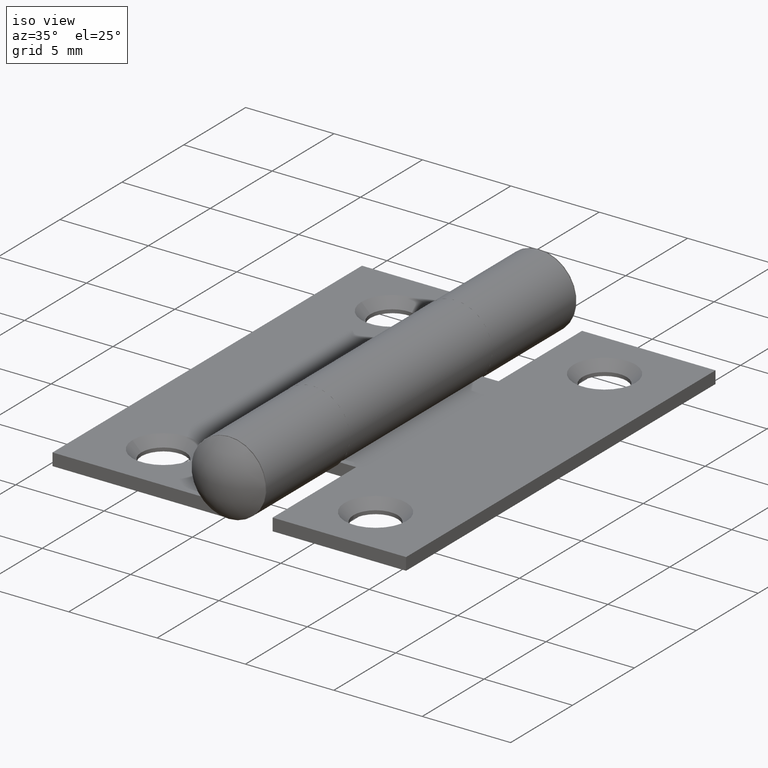
[diagram: clean part render]
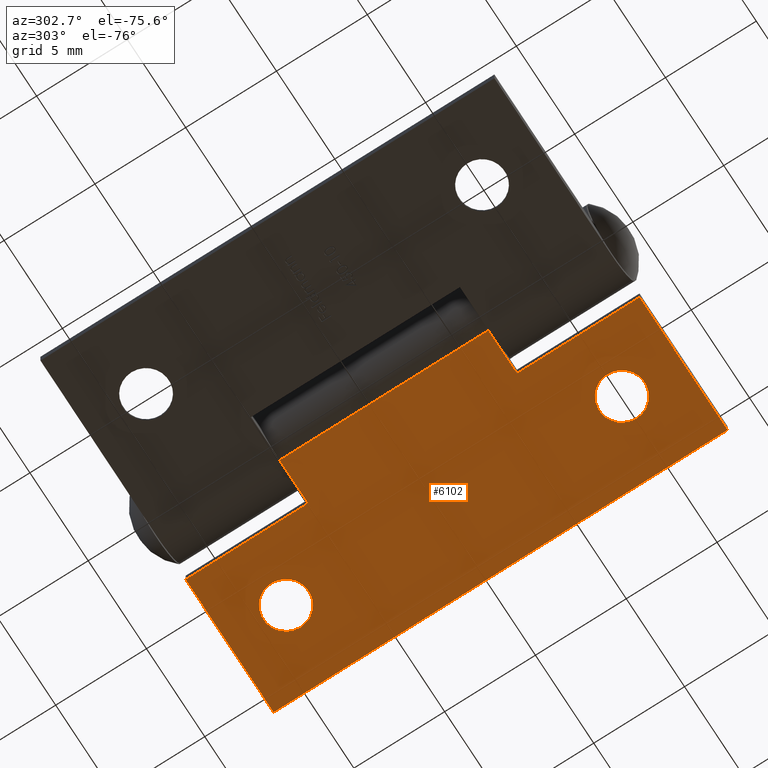
[diagram: tour spotlight — one face highlighted and labeled with its STEP entity id]
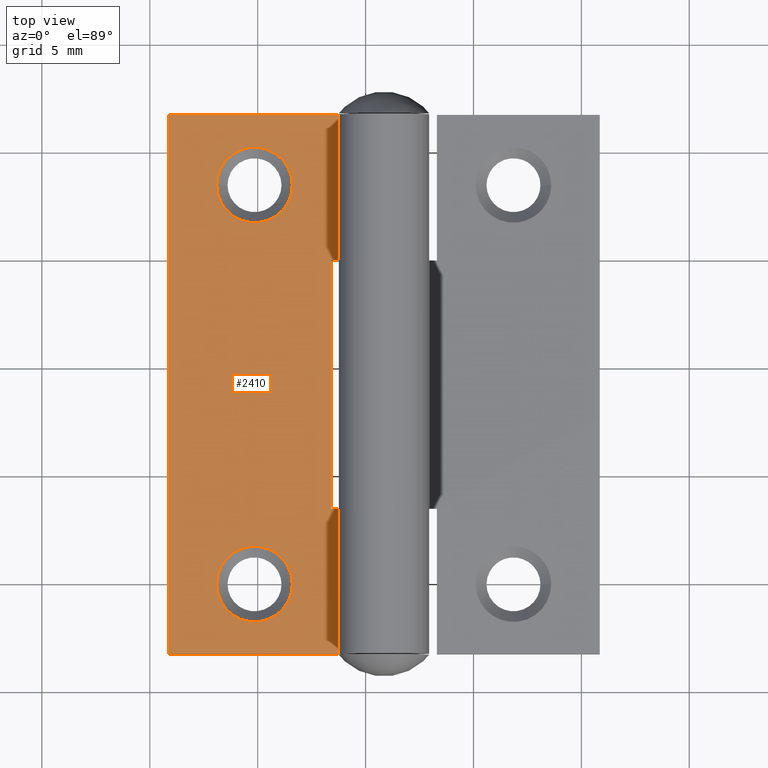
[diagram: tour spotlight — one face highlighted and labeled with its STEP entity id]
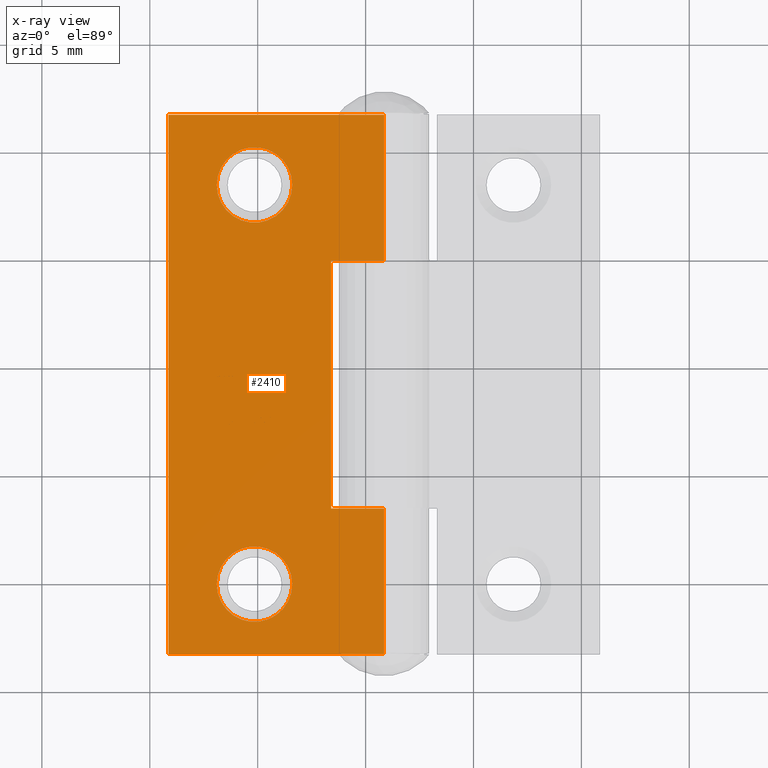
[diagram: x-ray of the same camera — body ghosted, this tour face saturated]
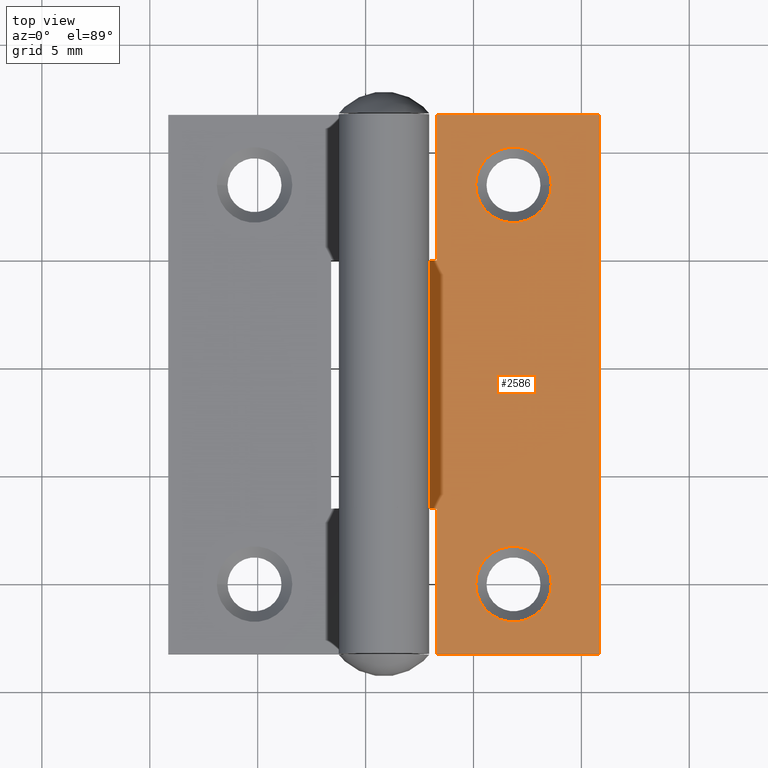
[diagram: tour spotlight — one face highlighted and labeled with its STEP entity id]
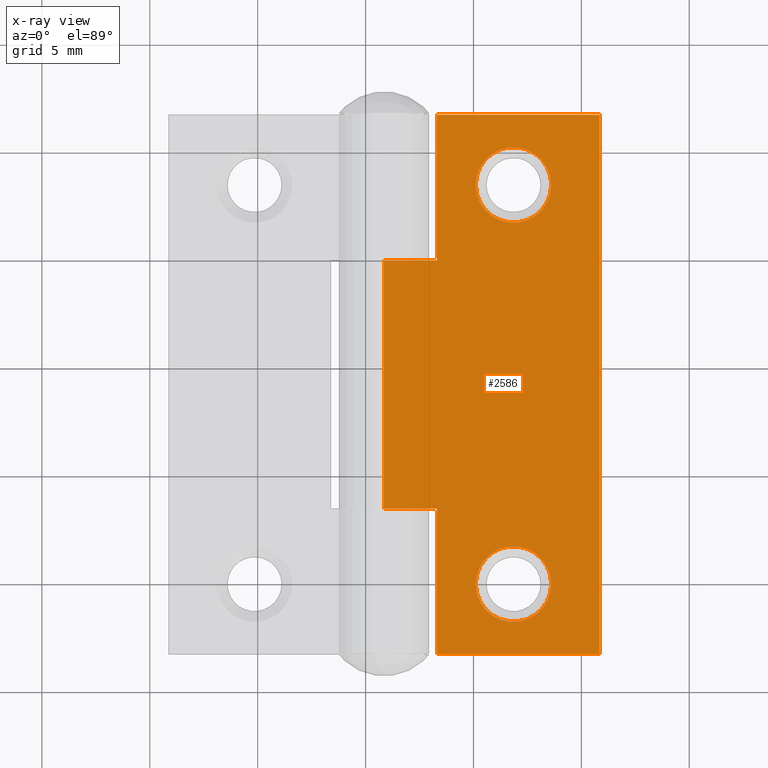
[diagram: x-ray of the same camera — body ghosted, this tour face saturated]
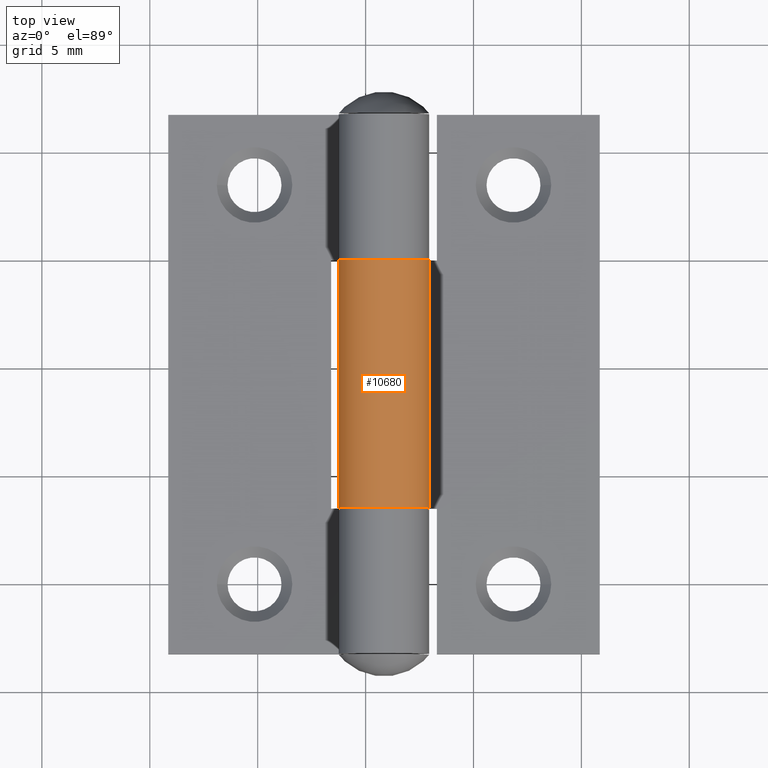
[diagram: tour spotlight — one face highlighted and labeled with its STEP entity id]
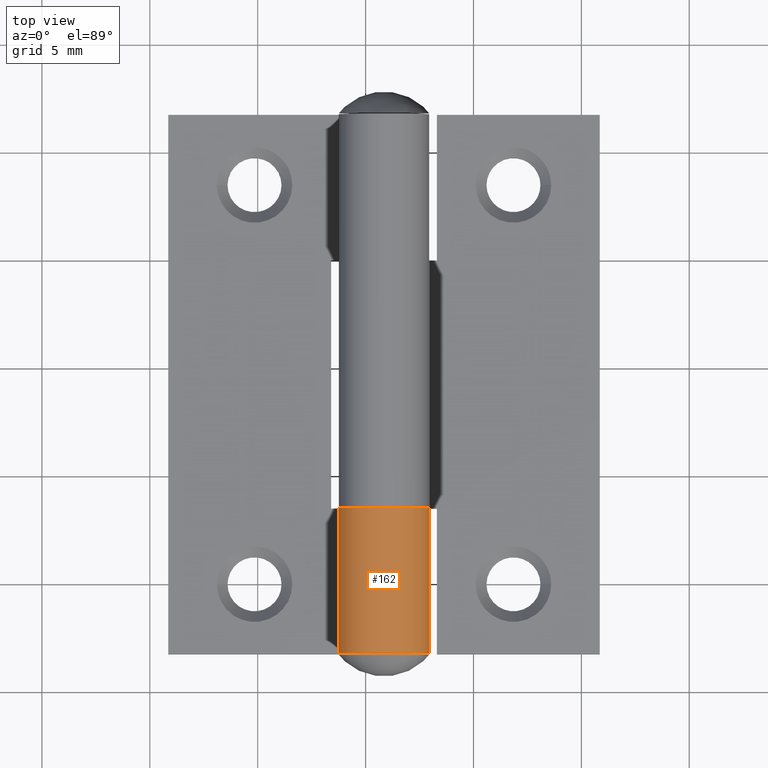
[diagram: tour spotlight — one face highlighted and labeled with its STEP entity id]
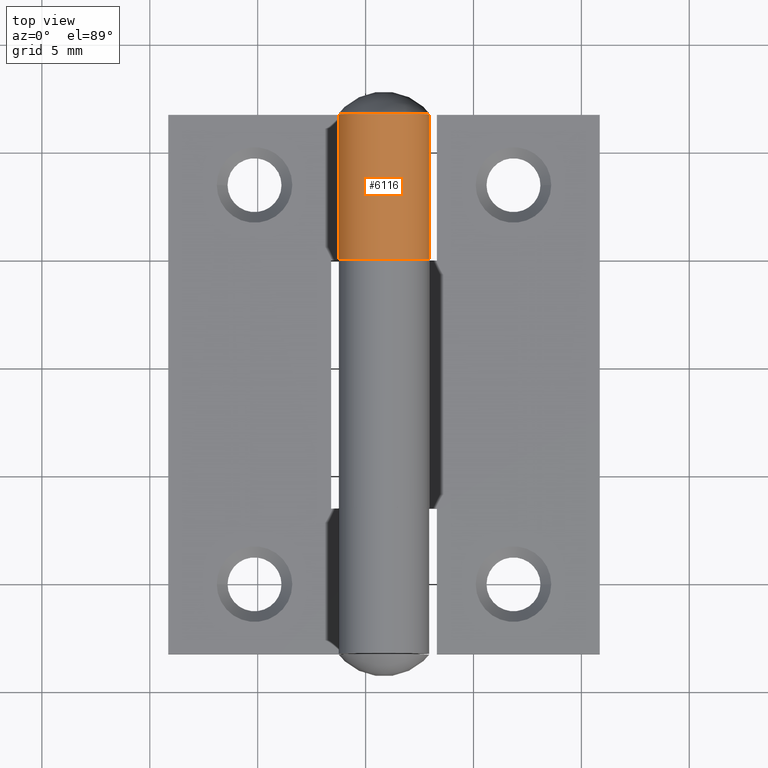
[diagram: tour spotlight — one face highlighted and labeled with its STEP entity id]
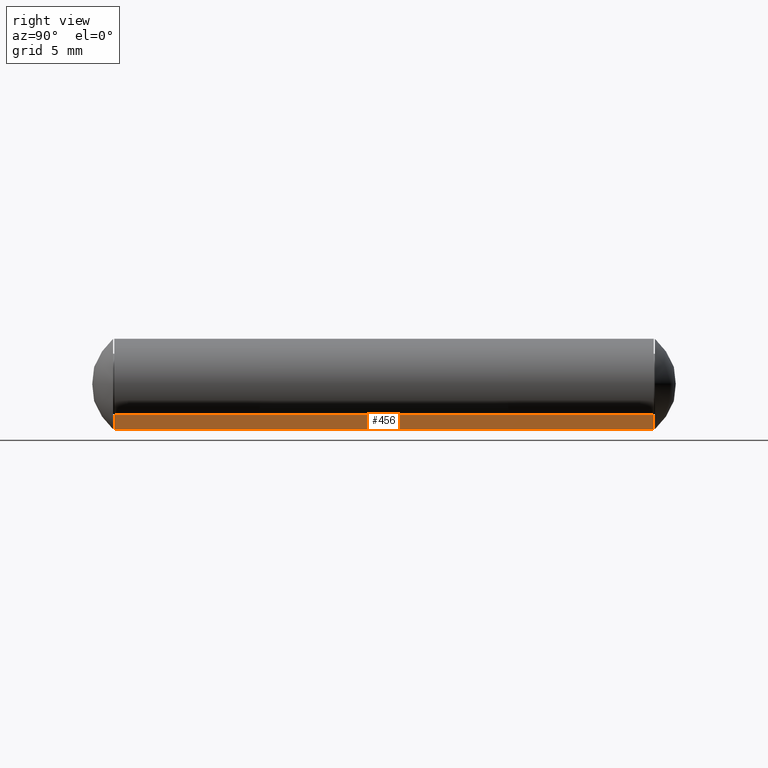
[diagram: tour spotlight — one face highlighted and labeled with its STEP entity id]
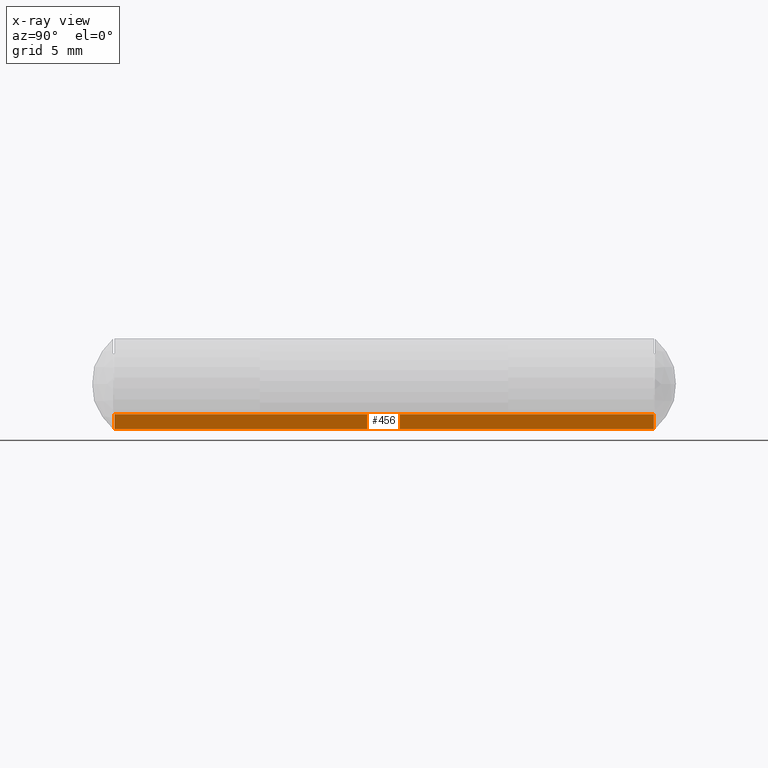
[diagram: x-ray of the same camera — body ghosted, this tour face saturated]
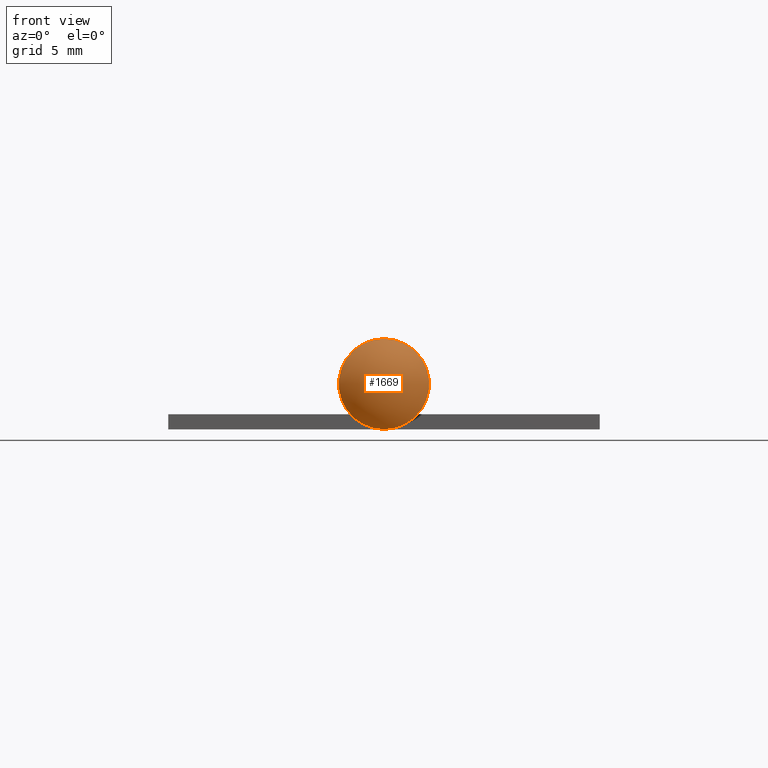
[diagram: tour spotlight — one face highlighted and labeled with its STEP entity id]
A machine part: a face-by-face anatomy tour. The part has 216 B-rep faces; the first image is the clean iso view, then the 8 largest visible faces are spotlighted one at a time (largest first), each with its STEP entity span.

Face 1 — auxiliary view, entity #6102. In plain terms, the highlighted planar face has unit normal (0, 0, 1).
Definition (entity closure, byte-faithful):
#190 = DIRECTION ( 'NONE',  ( 1.000000000000000000, 0.000000000000000000, -1.301042606982605321E-16 ) ) ;
#264 = VERTEX_POINT ( 'NONE', #998 ) ;
#420 = EDGE_CURVE ( 'NONE', #10159, #6763, #4434, .T. ) ;
#527 = CARTESIAN_POINT ( 'NONE',  ( -2.099999999999999645, -12.50000000000000000, 0.000000000000000000 ) ) ;
#794 = VERTEX_POINT ( 'NONE', #11299 ) ;
#811 = CARTESIAN_POINT ( 'NONE',  ( -6.849999999999996092, -9.250000000000001776, 0.000000000000000000 ) ) ;
#998 = CARTESIAN_POINT ( 'NONE',  ( -4.549999999999999822, -12.50000000000000000, 5.919743861770854210E-16 ) ) ;
#1115 = AXIS2_PLACEMENT_3D ( 'NONE', #5033, #7751, #10340 ) ;
#1246 = CARTESIAN_POINT ( 'NONE',  ( 4.549999999999998934, -5.750000000000000000, -5.919743861770853224E-16 ) ) ;
#1316 = EDGE_CURVE ( 'NONE', #9497, #794, #11236, .T. ) ;
#1322 = VERTEX_POINT ( 'NONE', #8472 ) ;
#1478 = CARTESIAN_POINT ( 'NONE',  ( -12.09999999999999964, 12.50000000000000000, 1.301042606982605321E-15 ) ) ;
#1580 = ORIENTED_EDGE ( 'NONE', *, *, #5054, .F. ) ;
#1609 = EDGE_CURVE ( 'NONE', #9497, #1322, #9044, .T. ) ;
#1701 = DIRECTION ( 'NONE',  ( 0.000000000000000000, 0.000000000000000000, 1.000000000000000000 ) ) ;
#1793 = VECTOR ( 'NONE', #9829, 1000.000000000000000 ) ;
#1846 = ORIENTED_EDGE ( 'NONE', *, *, #1316, .T. ) ;
#1869 = VERTEX_POINT ( 'NONE', #8619 ) ;
#2190 = EDGE_CURVE ( 'NONE', #3957, #3957, #3991, .T. ) ;
#2236 = EDGE_LOOP ( 'NONE', ( #8016, #6761, #5276, #1846, #10421, #1580, #2939, #10902 ) ) ;
#2421 = LINE ( 'NONE', #10615, #3836 ) ;
#2424 = LINE ( 'NONE', #1478, #4094 ) ;
#2603 = VECTOR ( 'NONE', #3837, 1000.000000000000000 ) ;
#2668 = CARTESIAN_POINT ( 'NONE',  ( -2.099999999999999645, 5.750000000000000000, 2.732189474663468709E-16 ) ) ;
#2755 = PLANE ( 'NONE',  #7199 ) ;
#2862 = CARTESIAN_POINT ( 'NONE',  ( -2.099999999999999645, 12.50000000000000000, 0.000000000000000000 ) ) ;
#2939 = ORIENTED_EDGE ( 'NONE', *, *, #6364, .T. ) ;
#3227 = FACE_OUTER_BOUND ( 'NONE', #2236, .T. ) ;
#3716 = CARTESIAN_POINT ( 'NONE',  ( 4.549999999999998934, 5.750000000000000000, -5.919743861770853224E-16 ) ) ;
#3836 = VECTOR ( 'NONE', #7904, 1000.000000000000000 ) ;
#3837 = DIRECTION ( 'NONE',  ( -0.000000000000000000, -1.000000000000000000, -0.000000000000000000 ) ) ;
#3957 = VERTEX_POINT ( 'NONE', #6954 ) ;
#3991 = CIRCLE ( 'NONE', #1115, 1.250000000000000222 ) ;
#4014 = EDGE_CURVE ( 'NONE', #1322, #10159, #2421, .T. ) ;
#4094 = VECTOR ( 'NONE', #8738, 1000.000000000000000 ) ;
#4274 = CARTESIAN_POINT ( 'NONE',  ( -12.09999999999999964, 12.50000000000000000, 1.301042606982605321E-15 ) ) ;
#4434 = LINE ( 'NONE', #2862, #4951 ) ;
#4443 = ORIENTED_EDGE ( 'NONE', *, *, #2190, .T. ) ;
#4636 = VECTOR ( 'NONE', #7145, 1000.000000000000000 ) ;
#4712 = DIRECTION ( 'NONE',  ( -1.000000000000000000, 0.000000000000000000, 1.301042606982605321E-16 ) ) ;
#4951 = VECTOR ( 'NONE', #5752, 1000.000000000000000 ) ;
#5033 = CARTESIAN_POINT ( 'NONE',  ( -8.099999999999997868, 9.249999999999998224, 0.000000000000000000 ) ) ;
#5054 = EDGE_CURVE ( 'NONE', #264, #5557, #7757, .T. ) ;
#5276 = ORIENTED_EDGE ( 'NONE', *, *, #1609, .F. ) ;
#5306 = DIRECTION ( 'NONE',  ( 1.301042606982605321E-16, -0.000000000000000000, 1.000000000000000000 ) ) ;
#5380 = CARTESIAN_POINT ( 'NONE',  ( -2.099999999999999645, 12.50000000000000000, 0.000000000000000000 ) ) ;
#5451 = ORIENTED_EDGE ( 'NONE', *, *, #9941, .T. ) ;
#5557 = VERTEX_POINT ( 'NONE', #5787 ) ;
#5578 = CARTESIAN_POINT ( 'NONE',  ( -2.099999999999999645, 12.50000000000000000, 0.000000000000000000 ) ) ;
#5752 = DIRECTION ( 'NONE',  ( -1.000000000000000000, 0.000000000000000000, 1.301042606982605321E-16 ) ) ;
#5787 = CARTESIAN_POINT ( 'NONE',  ( -4.549999999999999822, -5.750000000000000000, 5.919743861770854210E-16 ) ) ;
#5977 = FACE_BOUND ( 'NONE', #6230, .T. ) ;
#6102 = ADVANCED_FACE ( 'NONE', ( #7878, #5977, #3227 ), #2755, .F. ) ;
#6230 = EDGE_LOOP ( 'NONE', ( #4443 ) ) ;
#6364 = EDGE_CURVE ( 'NONE', #264, #1869, #6543, .T. ) ;
#6543 = LINE ( 'NONE', #527, #9236 ) ;
#6564 = CIRCLE ( 'NONE', #10126, 1.250000000000000222 ) ;
#6761 = ORIENTED_EDGE ( 'NONE', *, *, #4014, .F. ) ;
#6763 = VERTEX_POINT ( 'NONE', #4274 ) ;
#6954 = CARTESIAN_POINT ( 'NONE',  ( -6.849999999999997868, 9.249999999999998224, 0.000000000000000000 ) ) ;
#7038 = EDGE_CURVE ( 'NONE', #5557, #794, #10744, .T. ) ;
#7145 = DIRECTION ( 'NONE',  ( -0.000000000000000000, 1.000000000000000000, -0.000000000000000000 ) ) ;
#7199 = AXIS2_PLACEMENT_3D ( 'NONE', #5380, #5306, #190 ) ;
#7236 = DIRECTION ( 'NONE',  ( 1.000000000000000000, -0.000000000000000000, -1.301042606982605074E-16 ) ) ;
#7332 = VECTOR ( 'NONE', #7236, 1000.000000000000000 ) ;
#7349 = VERTEX_POINT ( 'NONE', #811 ) ;
#7751 = DIRECTION ( 'NONE',  ( 0.000000000000000000, 0.000000000000000000, 1.000000000000000000 ) ) ;
#7757 = LINE ( 'NONE', #8823, #4636 ) ;
#7878 = FACE_BOUND ( 'NONE', #11325, .T. ) ;
#7904 = DIRECTION ( 'NONE',  ( -0.000000000000000000, 1.000000000000000000, -0.000000000000000000 ) ) ;
#8016 = ORIENTED_EDGE ( 'NONE', *, *, #420, .F. ) ;
#8472 = CARTESIAN_POINT ( 'NONE',  ( -4.549999999999999822, 5.750000000000000000, 5.919743861770854210E-16 ) ) ;
#8619 = CARTESIAN_POINT ( 'NONE',  ( -12.09999999999999964, -12.50000000000000000, 1.301042606982605321E-15 ) ) ;
#8695 = DIRECTION ( 'NONE',  ( 1.000000000000000000, 0.000000000000000000, 0.000000000000000000 ) ) ;
#8738 = DIRECTION ( 'NONE',  ( -0.000000000000000000, -1.000000000000000000, -0.000000000000000000 ) ) ;
#8823 = CARTESIAN_POINT ( 'NONE',  ( -4.549999999999999822, -5.750000000000000000, 5.919743861770854210E-16 ) ) ;
#9044 = LINE ( 'NONE', #3716, #1793 ) ;
#9236 = VECTOR ( 'NONE', #4712, 1000.000000000000000 ) ;
#9497 = VERTEX_POINT ( 'NONE', #2668 ) ;
#9756 = CARTESIAN_POINT ( 'NONE',  ( -4.549999999999999822, 12.50000000000000000, 3.187554387107384022E-16 ) ) ;
#9829 = DIRECTION ( 'NONE',  ( -1.000000000000000000, 0.000000000000000000, 1.301042606982605074E-16 ) ) ;
#9876 = EDGE_CURVE ( 'NONE', #6763, #1869, #2424, .T. ) ;
#9941 = EDGE_CURVE ( 'NONE', #7349, #7349, #6564, .T. ) ;
#10126 = AXIS2_PLACEMENT_3D ( 'NONE', #10488, #1701, #8695 ) ;
#10159 = VERTEX_POINT ( 'NONE', #9756 ) ;
#10340 = DIRECTION ( 'NONE',  ( 1.000000000000000000, 0.000000000000000000, 0.000000000000000000 ) ) ;
#10421 = ORIENTED_EDGE ( 'NONE', *, *, #7038, .F. ) ;
#10488 = CARTESIAN_POINT ( 'NONE',  ( -8.099999999999996092, -9.250000000000001776, 0.000000000000000000 ) ) ;
#10615 = CARTESIAN_POINT ( 'NONE',  ( -4.549999999999999822, 12.50000000000000000, 5.919743861770854210E-16 ) ) ;
#10744 = LINE ( 'NONE', #1246, #7332 ) ;
#10902 = ORIENTED_EDGE ( 'NONE', *, *, #9876, .F. ) ;
#11236 = LINE ( 'NONE', #5578, #2603 ) ;
#11299 = CARTESIAN_POINT ( 'NONE',  ( -2.099999999999999645, -5.750000000000000000, 2.732189474663468709E-16 ) ) ;
#11325 = EDGE_LOOP ( 'NONE', ( #5451 ) ) ;

Face 2 — top view, entity #2410. An x-ray twin of the same camera follows (body ghosted, this face saturated) — the face is partly hidden behind the body. In plain terms, the highlighted planar face has unit normal (-0, 0, -1).
Definition (entity closure, byte-faithful):
#291 = VECTOR ( 'NONE', #10193, 1000.000000000000000 ) ;
#372 = EDGE_LOOP ( 'NONE', ( #1823 ) ) ;
#528 = CARTESIAN_POINT ( 'NONE',  ( -8.099999999999996092, -9.250000000000001776, 0.7000000000000008438 ) ) ;
#666 = VECTOR ( 'NONE', #7928, 1000.000000000000000 ) ;
#753 = EDGE_CURVE ( 'NONE', #2101, #7299, #3828, .T. ) ;
#768 = CARTESIAN_POINT ( 'NONE',  ( -2.099999999999999645, 12.50000000000000000, 0.7000000000000000666 ) ) ;
#842 = CARTESIAN_POINT ( 'NONE',  ( -4.549999999999999822, 12.50000000000000000, 0.7000000000000003997 ) ) ;
#977 = CIRCLE ( 'NONE', #5580, 1.749999999999994671 ) ;
#978 = CARTESIAN_POINT ( 'NONE',  ( -8.099999999999997868, 9.249999999999998224, 0.7000000000000008438 ) ) ;
#1422 = EDGE_LOOP ( 'NONE', ( #3630, #5245, #8393, #1714, #2959, #8916, #8640, #4361 ) ) ;
#1635 = LINE ( 'NONE', #3494, #11080 ) ;
#1714 = ORIENTED_EDGE ( 'NONE', *, *, #5777, .T. ) ;
#1727 = EDGE_CURVE ( 'NONE', #10633, #10633, #977, .T. ) ;
#1823 = ORIENTED_EDGE ( 'NONE', *, *, #10545, .T. ) ;
#1920 = FACE_OUTER_BOUND ( 'NONE', #1422, .T. ) ;
#2101 = VERTEX_POINT ( 'NONE', #6629 ) ;
#2195 = FACE_BOUND ( 'NONE', #372, .T. ) ;
#2354 = DIRECTION ( 'NONE',  ( 1.000000000000000000, -0.000000000000000000, -1.192622389734055124E-16 ) ) ;
#2379 = EDGE_CURVE ( 'NONE', #4373, #6278, #10113, .T. ) ;
#2410 = ADVANCED_FACE ( 'NONE', ( #4531, #2195, #1920 ), #6842, .F. ) ;
#2486 = DIRECTION ( 'NONE',  ( -0.000000000000000000, -1.000000000000000000, -0.000000000000000000 ) ) ;
#2493 = DIRECTION ( 'NONE',  ( 0.000000000000000000, 1.000000000000000000, 0.000000000000000000 ) ) ;
#2695 = VERTEX_POINT ( 'NONE', #9478 ) ;
#2959 = ORIENTED_EDGE ( 'NONE', *, *, #8682, .F. ) ;
#3092 = VERTEX_POINT ( 'NONE', #3462 ) ;
#3271 = CARTESIAN_POINT ( 'NONE',  ( -9.849999999999990763, -9.250000000000001776, 0.7000000000000010658 ) ) ;
#3401 = VECTOR ( 'NONE', #9924, 1000.000000000000000 ) ;
#3462 = CARTESIAN_POINT ( 'NONE',  ( -12.09999999999999787, -12.50000000000000000, 0.7000000000000012879 ) ) ;
#3494 = CARTESIAN_POINT ( 'NONE',  ( -2.099999999999999645, 12.50000000000000000, 0.7000000000000000666 ) ) ;
#3596 = AXIS2_PLACEMENT_3D ( 'NONE', #768, #11199, #5094 ) ;
#3630 = ORIENTED_EDGE ( 'NONE', *, *, #753, .F. ) ;
#3828 = LINE ( 'NONE', #9344, #291 ) ;
#4263 = EDGE_CURVE ( 'NONE', #3092, #7299, #7094, .T. ) ;
#4361 = ORIENTED_EDGE ( 'NONE', *, *, #4263, .T. ) ;
#4373 = VERTEX_POINT ( 'NONE', #5766 ) ;
#4531 = FACE_BOUND ( 'NONE', #10341, .T. ) ;
#4839 = CARTESIAN_POINT ( 'NONE',  ( -2.099999999999999645, 12.50000000000000000, 0.7000000000000000666 ) ) ;
#5027 = LINE ( 'NONE', #7944, #3401 ) ;
#5037 = LINE ( 'NONE', #4839, #6020 ) ;
#5094 = DIRECTION ( 'NONE',  ( -1.000000000000000000, 0.000000000000000000, 1.192622389734055124E-16 ) ) ;
#5245 = ORIENTED_EDGE ( 'NONE', *, *, #9484, .T. ) ;
#5580 = AXIS2_PLACEMENT_3D ( 'NONE', #528, #6658, #10115 ) ;
#5721 = VECTOR ( 'NONE', #2354, 1000.000000000000000 ) ;
#5766 = CARTESIAN_POINT ( 'NONE',  ( -4.549999999999999822, -5.750000000000000000, 0.7000000000000000666 ) ) ;
#5777 = EDGE_CURVE ( 'NONE', #6278, #8414, #6270, .T. ) ;
#6020 = VECTOR ( 'NONE', #6639, 1000.000000000000000 ) ;
#6188 = CARTESIAN_POINT ( 'NONE',  ( -12.09999999999999787, 12.50000000000000000, 0.7000000000000012879 ) ) ;
#6221 = ORIENTED_EDGE ( 'NONE', *, *, #1727, .T. ) ;
#6270 = LINE ( 'NONE', #11281, #5721 ) ;
#6278 = VERTEX_POINT ( 'NONE', #8071 ) ;
#6435 = VECTOR ( 'NONE', #8885, 1000.000000000000000 ) ;
#6531 = DIRECTION ( 'NONE',  ( -1.000000000000000000, 0.000000000000000000, 1.239088197126294515E-16 ) ) ;
#6629 = CARTESIAN_POINT ( 'NONE',  ( -2.100000000000000089, -5.750000000000001776, 0.7000000000000000666 ) ) ;
#6639 = DIRECTION ( 'NONE',  ( 1.000000000000000000, -0.000000000000000000, -1.192622389734055124E-16 ) ) ;
#6658 = DIRECTION ( 'NONE',  ( -1.192622389734055124E-16, 0.000000000000000000, -1.000000000000000000 ) ) ;
#6677 = CARTESIAN_POINT ( 'NONE',  ( -2.099999999999999645, 12.50000000000000000, 0.7000000000000000666 ) ) ;
#6842 = PLANE ( 'NONE',  #3596 ) ;
#6987 = VECTOR ( 'NONE', #2493, 1000.000000000000000 ) ;
#7094 = LINE ( 'NONE', #9716, #6435 ) ;
#7150 = VERTEX_POINT ( 'NONE', #7304 ) ;
#7225 = CIRCLE ( 'NONE', #8311, 1.749999999999994671 ) ;
#7299 = VERTEX_POINT ( 'NONE', #9342 ) ;
#7304 = CARTESIAN_POINT ( 'NONE',  ( -12.09999999999999787, 12.50000000000000000, 0.7000000000000012879 ) ) ;
#7928 = DIRECTION ( 'NONE',  ( -0.000000000000000000, -1.000000000000000000, -0.000000000000000000 ) ) ;
#7944 = CARTESIAN_POINT ( 'NONE',  ( -2.099999999999999645, -5.750000000000001776, 0.7000000000000000666 ) ) ;
#8071 = CARTESIAN_POINT ( 'NONE',  ( -4.549999999999999822, 5.750000000000000000, 0.7000000000000000666 ) ) ;
#8311 = AXIS2_PLACEMENT_3D ( 'NONE', #978, #8841, #6531 ) ;
#8393 = ORIENTED_EDGE ( 'NONE', *, *, #2379, .T. ) ;
#8414 = VERTEX_POINT ( 'NONE', #10516 ) ;
#8640 = ORIENTED_EDGE ( 'NONE', *, *, #10537, .T. ) ;
#8682 = EDGE_CURVE ( 'NONE', #9208, #8414, #1635, .T. ) ;
#8841 = DIRECTION ( 'NONE',  ( -1.192622389734055124E-16, 0.000000000000000000, -1.000000000000000000 ) ) ;
#8885 = DIRECTION ( 'NONE',  ( 1.000000000000000000, -0.000000000000000000, -1.192622389734055124E-16 ) ) ;
#8916 = ORIENTED_EDGE ( 'NONE', *, *, #9205, .F. ) ;
#9205 = EDGE_CURVE ( 'NONE', #7150, #9208, #5037, .T. ) ;
#9208 = VERTEX_POINT ( 'NONE', #6677 ) ;
#9342 = CARTESIAN_POINT ( 'NONE',  ( -2.099999999999999645, -12.50000000000000000, 0.7000000000000000666 ) ) ;
#9344 = CARTESIAN_POINT ( 'NONE',  ( -2.099999999999999645, 12.50000000000000000, 0.7000000000000000666 ) ) ;
#9478 = CARTESIAN_POINT ( 'NONE',  ( -9.849999999999992539, 9.249999999999998224, 0.7000000000000010658 ) ) ;
#9484 = EDGE_CURVE ( 'NONE', #2101, #4373, #5027, .T. ) ;
#9716 = CARTESIAN_POINT ( 'NONE',  ( -2.099999999999999645, -12.50000000000000000, 0.7000000000000000666 ) ) ;
#9824 = LINE ( 'NONE', #6188, #666 ) ;
#9924 = DIRECTION ( 'NONE',  ( -1.000000000000000000, 0.000000000000000000, 1.192622389734055124E-16 ) ) ;
#10113 = LINE ( 'NONE', #842, #6987 ) ;
#10115 = DIRECTION ( 'NONE',  ( -1.000000000000000000, 0.000000000000000000, 1.239088197126294515E-16 ) ) ;
#10193 = DIRECTION ( 'NONE',  ( -0.000000000000000000, -1.000000000000000000, -0.000000000000000000 ) ) ;
#10341 = EDGE_LOOP ( 'NONE', ( #6221 ) ) ;
#10516 = CARTESIAN_POINT ( 'NONE',  ( -2.099999999999999645, 5.750000000000000000, 0.7000000000000000666 ) ) ;
#10537 = EDGE_CURVE ( 'NONE', #7150, #3092, #9824, .T. ) ;
#10545 = EDGE_CURVE ( 'NONE', #2695, #2695, #7225, .T. ) ;
#10633 = VERTEX_POINT ( 'NONE', #3271 ) ;
#11080 = VECTOR ( 'NONE', #2486, 1000.000000000000000 ) ;
#11199 = DIRECTION ( 'NONE',  ( -1.192622389734055124E-16, 0.000000000000000000, -1.000000000000000000 ) ) ;
#11281 = CARTESIAN_POINT ( 'NONE',  ( -2.099999999999999645, 5.750000000000000000, 0.7000000000000000666 ) ) ;

Face 3 — top view, entity #2586. An x-ray twin of the same camera follows (body ghosted, this face saturated) — the face is partly hidden behind the body. In plain terms, the highlighted planar face has unit normal (-0, -0, -1).
Definition (entity closure, byte-faithful):
#170 = FACE_OUTER_BOUND ( 'NONE', #3103, .T. ) ;
#175 = EDGE_CURVE ( 'NONE', #10719, #8273, #5376, .T. ) ;
#335 = AXIS2_PLACEMENT_3D ( 'NONE', #7266, #1950, #10625 ) ;
#632 = CARTESIAN_POINT ( 'NONE',  ( -2.099999999999999645, -5.750000000000001776, 0.7000000000000000666 ) ) ;
#658 = VERTEX_POINT ( 'NONE', #1592 ) ;
#787 = CARTESIAN_POINT ( 'NONE',  ( -8.099999999999996092, -9.250000000000001776, 0.7000000000000008438 ) ) ;
#806 = EDGE_CURVE ( 'NONE', #658, #658, #4238, .T. ) ;
#966 = ORIENTED_EDGE ( 'NONE', *, *, #6648, .F. ) ;
#1125 = DIRECTION ( 'NONE',  ( 1.000000000000000000, -0.000000000000000000, -1.192622389734055124E-16 ) ) ;
#1212 = VECTOR ( 'NONE', #1125, 1000.000000000000000 ) ;
#1435 = EDGE_LOOP ( 'NONE', ( #3363 ) ) ;
#1504 = CARTESIAN_POINT ( 'NONE',  ( -12.09999999999999787, -12.50000000000000000, 0.7000000000000012879 ) ) ;
#1571 = EDGE_CURVE ( 'NONE', #5726, #5726, #6715, .T. ) ;
#1592 = CARTESIAN_POINT ( 'NONE',  ( -9.849999999999990763, -9.250000000000001776, 0.7000000000000010658 ) ) ;
#1799 = LINE ( 'NONE', #4572, #7951 ) ;
#1853 = CARTESIAN_POINT ( 'NONE',  ( -4.549999999999999822, 12.50000000000000000, 0.7000000000000003997 ) ) ;
#1907 = VECTOR ( 'NONE', #7781, 1000.000000000000000 ) ;
#1950 = DIRECTION ( 'NONE',  ( -1.192622389734055124E-16, 0.000000000000000000, -1.000000000000000000 ) ) ;
#1986 = CARTESIAN_POINT ( 'NONE',  ( -2.099999999999999645, -5.750000000000001776, 0.7000000000000000666 ) ) ;
#2232 = VERTEX_POINT ( 'NONE', #10816 ) ;
#2316 = VECTOR ( 'NONE', #2708, 1000.000000000000000 ) ;
#2459 = CARTESIAN_POINT ( 'NONE',  ( -9.849999999999992539, 9.249999999999998224, 0.7000000000000010658 ) ) ;
#2537 = CARTESIAN_POINT ( 'NONE',  ( -4.549999999999999822, 12.50000000000000000, 0.7000000000000009548 ) ) ;
#2542 = EDGE_CURVE ( 'NONE', #2232, #6767, #6702, .T. ) ;
#2547 = ORIENTED_EDGE ( 'NONE', *, *, #806, .T. ) ;
#2586 = ADVANCED_FACE ( 'NONE', ( #3986, #2740, #170 ), #9689, .F. ) ;
#2708 = DIRECTION ( 'NONE',  ( -0.000000000000000000, -1.000000000000000000, -0.000000000000000000 ) ) ;
#2740 = FACE_BOUND ( 'NONE', #1435, .T. ) ;
#2764 = DIRECTION ( 'NONE',  ( 0.000000000000000000, 1.000000000000000000, 0.000000000000000000 ) ) ;
#2858 = DIRECTION ( 'NONE',  ( -1.192622389734055124E-16, 0.000000000000000000, -1.000000000000000000 ) ) ;
#3068 = EDGE_CURVE ( 'NONE', #6767, #9186, #9834, .T. ) ;
#3103 = EDGE_LOOP ( 'NONE', ( #11181, #10582, #3535, #9369, #6646, #3746, #9744, #966 ) ) ;
#3107 = VERTEX_POINT ( 'NONE', #2537 ) ;
#3120 = VECTOR ( 'NONE', #6587, 1000.000000000000000 ) ;
#3181 = CARTESIAN_POINT ( 'NONE',  ( -4.549999999999999822, -5.750000000000000000, 0.7000000000000005107 ) ) ;
#3218 = AXIS2_PLACEMENT_3D ( 'NONE', #787, #6893, #6138 ) ;
#3221 = VECTOR ( 'NONE', #7530, 1000.000000000000000 ) ;
#3363 = ORIENTED_EDGE ( 'NONE', *, *, #1571, .T. ) ;
#3411 = CARTESIAN_POINT ( 'NONE',  ( -2.099999999999999645, 5.750000000000000000, 0.7000000000000000666 ) ) ;
#3459 = CARTESIAN_POINT ( 'NONE',  ( -12.09999999999999787, 12.50000000000000000, 0.7000000000000012879 ) ) ;
#3535 = ORIENTED_EDGE ( 'NONE', *, *, #4624, .F. ) ;
#3672 = LINE ( 'NONE', #5465, #1212 ) ;
#3746 = ORIENTED_EDGE ( 'NONE', *, *, #4301, .T. ) ;
#3986 = FACE_BOUND ( 'NONE', #10804, .T. ) ;
#4055 = LINE ( 'NONE', #4109, #3221 ) ;
#4109 = CARTESIAN_POINT ( 'NONE',  ( -2.099999999999999645, 12.50000000000000000, 0.7000000000000000666 ) ) ;
#4110 = VERTEX_POINT ( 'NONE', #3181 ) ;
#4238 = CIRCLE ( 'NONE', #3218, 1.749999999999994671 ) ;
#4301 = EDGE_CURVE ( 'NONE', #9186, #4110, #10503, .T. ) ;
#4572 = CARTESIAN_POINT ( 'NONE',  ( -4.549999999999999822, 12.50000000000000000, 0.7000000000000003997 ) ) ;
#4583 = DIRECTION ( 'NONE',  ( -1.000000000000000000, 0.000000000000000000, 1.192622389734055124E-16 ) ) ;
#4624 = EDGE_CURVE ( 'NONE', #2232, #3107, #3672, .T. ) ;
#5076 = CARTESIAN_POINT ( 'NONE',  ( -4.549999999999999822, 5.750000000000000000, 0.7000000000000000666 ) ) ;
#5240 = CARTESIAN_POINT ( 'NONE',  ( -2.099999999999999645, 12.50000000000000000, 0.7000000000000000666 ) ) ;
#5376 = LINE ( 'NONE', #3411, #10277 ) ;
#5465 = CARTESIAN_POINT ( 'NONE',  ( -2.099999999999999645, 12.50000000000000000, 0.7000000000000000666 ) ) ;
#5726 = VERTEX_POINT ( 'NONE', #2459 ) ;
#5895 = CARTESIAN_POINT ( 'NONE',  ( -2.099999999999999645, -12.50000000000000000, 0.7000000000000000666 ) ) ;
#5942 = AXIS2_PLACEMENT_3D ( 'NONE', #5240, #2858, #4583 ) ;
#6138 = DIRECTION ( 'NONE',  ( -1.000000000000000000, 0.000000000000000000, 1.239088197126294515E-16 ) ) ;
#6333 = DIRECTION ( 'NONE',  ( 0.000000000000000000, 1.000000000000000000, 0.000000000000000000 ) ) ;
#6587 = DIRECTION ( 'NONE',  ( 1.000000000000000000, -0.000000000000000000, -1.192622389734055124E-16 ) ) ;
#6646 = ORIENTED_EDGE ( 'NONE', *, *, #3068, .T. ) ;
#6648 = EDGE_CURVE ( 'NONE', #10719, #10864, #4055, .T. ) ;
#6702 = LINE ( 'NONE', #3459, #2316 ) ;
#6715 = CIRCLE ( 'NONE', #335, 1.749999999999994671 ) ;
#6767 = VERTEX_POINT ( 'NONE', #1504 ) ;
#6820 = VECTOR ( 'NONE', #2764, 1000.000000000000000 ) ;
#6893 = DIRECTION ( 'NONE',  ( -1.192622389734055124E-16, 0.000000000000000000, -1.000000000000000000 ) ) ;
#7093 = EDGE_CURVE ( 'NONE', #8273, #3107, #1799, .T. ) ;
#7266 = CARTESIAN_POINT ( 'NONE',  ( -8.099999999999997868, 9.249999999999998224, 0.7000000000000008438 ) ) ;
#7530 = DIRECTION ( 'NONE',  ( -0.000000000000000000, -1.000000000000000000, -0.000000000000000000 ) ) ;
#7761 = LINE ( 'NONE', #1986, #3120 ) ;
#7781 = DIRECTION ( 'NONE',  ( 1.000000000000000000, -0.000000000000000000, -1.192622389734055124E-16 ) ) ;
#7951 = VECTOR ( 'NONE', #6333, 1000.000000000000000 ) ;
#8273 = VERTEX_POINT ( 'NONE', #5076 ) ;
#8335 = CARTESIAN_POINT ( 'NONE',  ( -2.100000000000000089, 5.750000000000000000, 0.7000000000000000666 ) ) ;
#9186 = VERTEX_POINT ( 'NONE', #10925 ) ;
#9369 = ORIENTED_EDGE ( 'NONE', *, *, #2542, .T. ) ;
#9532 = DIRECTION ( 'NONE',  ( -1.000000000000000000, 0.000000000000000000, 1.192622389734055124E-16 ) ) ;
#9689 = PLANE ( 'NONE',  #5942 ) ;
#9721 = EDGE_CURVE ( 'NONE', #4110, #10864, #7761, .T. ) ;
#9744 = ORIENTED_EDGE ( 'NONE', *, *, #9721, .T. ) ;
#9834 = LINE ( 'NONE', #5895, #1907 ) ;
#10277 = VECTOR ( 'NONE', #9532, 1000.000000000000000 ) ;
#10503 = LINE ( 'NONE', #1853, #6820 ) ;
#10582 = ORIENTED_EDGE ( 'NONE', *, *, #7093, .T. ) ;
#10625 = DIRECTION ( 'NONE',  ( -1.000000000000000000, 0.000000000000000000, 1.239088197126294515E-16 ) ) ;
#10719 = VERTEX_POINT ( 'NONE', #8335 ) ;
#10804 = EDGE_LOOP ( 'NONE', ( #2547 ) ) ;
#10816 = CARTESIAN_POINT ( 'NONE',  ( -12.09999999999999787, 12.50000000000000000, 0.7000000000000012879 ) ) ;
#10864 = VERTEX_POINT ( 'NONE', #632 ) ;
#10925 = CARTESIAN_POINT ( 'NONE',  ( -4.549999999999999822, -12.50000000000000000, 0.7000000000000003997 ) ) ;
#11181 = ORIENTED_EDGE ( 'NONE', *, *, #175, .T. ) ;

Face 4 — top view, entity #10680. In plain terms, the highlighted cylindrical surface (partial cylindrical patch) has radius 2.1 mm, axis along (0, 1, -0).
Definition (entity closure, byte-faithful):
#32 = DIRECTION ( 'NONE',  ( 0.000000000000000000, 0.000000000000000000, -1.000000000000000000 ) ) ;
#181 = EDGE_LOOP ( 'NONE', ( #5241, #6481, #1416, #2288 ) ) ;
#466 = DIRECTION ( 'NONE',  ( 0.000000000000000000, 0.000000000000000000, -1.000000000000000000 ) ) ;
#794 = VERTEX_POINT ( 'NONE', #11299 ) ;
#841 = CARTESIAN_POINT ( 'NONE',  ( -3.749242250247063257, -5.750000000000001776, 0.8000000000000000444 ) ) ;
#925 = VERTEX_POINT ( 'NONE', #8075 ) ;
#1055 = DIRECTION ( 'NONE',  ( 0.000000000000000000, 0.000000000000000000, 1.000000000000000000 ) ) ;
#1316 = EDGE_CURVE ( 'NONE', #9497, #794, #11236, .T. ) ;
#1416 = ORIENTED_EDGE ( 'NONE', *, *, #5934, .T. ) ;
#1774 = CARTESIAN_POINT ( 'NONE',  ( -2.100000000000000089, 5.750000000000000000, 2.100000000000000089 ) ) ;
#2288 = ORIENTED_EDGE ( 'NONE', *, *, #8865, .T. ) ;
#2298 = FACE_OUTER_BOUND ( 'NONE', #181, .T. ) ;
#2603 = VECTOR ( 'NONE', #3837, 1000.000000000000000 ) ;
#2668 = CARTESIAN_POINT ( 'NONE',  ( -2.099999999999999645, 5.750000000000000000, 2.732189474663468709E-16 ) ) ;
#2675 = AXIS2_PLACEMENT_3D ( 'NONE', #9840, #6306, #1055 ) ;
#3837 = DIRECTION ( 'NONE',  ( -0.000000000000000000, -1.000000000000000000, -0.000000000000000000 ) ) ;
#3869 = AXIS2_PLACEMENT_3D ( 'NONE', #6568, #8365, #466 ) ;
#5041 = DIRECTION ( 'NONE',  ( -0.000000000000000000, -1.000000000000000000, -0.000000000000000000 ) ) ;
#5053 = AXIS2_PLACEMENT_3D ( 'NONE', #1774, #11301, #32 ) ;
#5241 = ORIENTED_EDGE ( 'NONE', *, *, #1316, .F. ) ;
#5318 = EDGE_CURVE ( 'NONE', #9497, #925, #7748, .T. ) ;
#5578 = CARTESIAN_POINT ( 'NONE',  ( -2.099999999999999645, 12.50000000000000000, 0.000000000000000000 ) ) ;
#5934 = EDGE_CURVE ( 'NONE', #925, #9910, #10323, .T. ) ;
#6306 = DIRECTION ( 'NONE',  ( 0.000000000000000000, 1.000000000000000000, -0.000000000000000000 ) ) ;
#6481 = ORIENTED_EDGE ( 'NONE', *, *, #5318, .T. ) ;
#6568 = CARTESIAN_POINT ( 'NONE',  ( -2.100000000000000089, 12.50000000000000000, 2.100000000000000089 ) ) ;
#7748 = CIRCLE ( 'NONE', #5053, 2.099999999999999645 ) ;
#7806 = CARTESIAN_POINT ( 'NONE',  ( -3.749242250247063257, 12.50000000000000000, 0.8000000000000001554 ) ) ;
#8075 = CARTESIAN_POINT ( 'NONE',  ( -3.749242250247063257, 5.750000000000000000, 0.8000000000000000444 ) ) ;
#8365 = DIRECTION ( 'NONE',  ( -0.000000000000000000, -1.000000000000000000, -0.000000000000000000 ) ) ;
#8865 = EDGE_CURVE ( 'NONE', #9910, #794, #11216, .T. ) ;
#9004 = CYLINDRICAL_SURFACE ( 'NONE', #3869, 2.099999999999999645 ) ;
#9497 = VERTEX_POINT ( 'NONE', #2668 ) ;
#9840 = CARTESIAN_POINT ( 'NONE',  ( -2.100000000000000089, -5.750000000000001776, 2.100000000000000089 ) ) ;
#9910 = VERTEX_POINT ( 'NONE', #841 ) ;
#9934 = VECTOR ( 'NONE', #5041, 1000.000000000000000 ) ;
#10323 = LINE ( 'NONE', #7806, #9934 ) ;
#10680 = ADVANCED_FACE ( 'NONE', ( #2298 ), #9004, .T. ) ;
#11216 = CIRCLE ( 'NONE', #2675, 2.099999999999999201 ) ;
#11236 = LINE ( 'NONE', #5578, #2603 ) ;
#11299 = CARTESIAN_POINT ( 'NONE',  ( -2.099999999999999645, -5.750000000000000000, 2.732189474663468709E-16 ) ) ;
#11301 = DIRECTION ( 'NONE',  ( 0.000000000000000000, -1.000000000000000000, 0.000000000000000000 ) ) ;

Face 5 — top view, entity #162. In plain terms, the highlighted cylindrical surface (partial cylindrical patch) has radius 2.1 mm, axis along (-0, -1, -0).
Definition (entity closure, byte-faithful):
#28 = CARTESIAN_POINT ( 'NONE',  ( -2.099999999999999645, -12.50000000000000000, 0.000000000000000000 ) ) ;
#162 = ADVANCED_FACE ( 'NONE', ( #5935 ), #5802, .T. ) ;
#429 = VECTOR ( 'NONE', #980, 1000.000000000000000 ) ;
#478 = AXIS2_PLACEMENT_3D ( 'NONE', #3183, #9359, #4084 ) ;
#563 = VECTOR ( 'NONE', #1134, 1000.000000000000000 ) ;
#603 = AXIS2_PLACEMENT_3D ( 'NONE', #6970, #886, #6208 ) ;
#886 = DIRECTION ( 'NONE',  ( -0.000000000000000000, -1.000000000000000000, -0.000000000000000000 ) ) ;
#980 = DIRECTION ( 'NONE',  ( -0.000000000000000000, -1.000000000000000000, -0.000000000000000000 ) ) ;
#1134 = DIRECTION ( 'NONE',  ( -0.000000000000000000, -1.000000000000000000, -0.000000000000000000 ) ) ;
#1338 = ORIENTED_EDGE ( 'NONE', *, *, #8909, .F. ) ;
#1547 = VERTEX_POINT ( 'NONE', #28 ) ;
#2898 = CARTESIAN_POINT ( 'NONE',  ( -2.100000000000000089, -5.750000000000001776, 2.100000000000000089 ) ) ;
#2935 = VERTEX_POINT ( 'NONE', #5439 ) ;
#3183 = CARTESIAN_POINT ( 'NONE',  ( -2.100000000000000089, -12.50000000000000000, 2.100000000000000089 ) ) ;
#3367 = EDGE_CURVE ( 'NONE', #5385, #3945, #4789, .T. ) ;
#3656 = EDGE_CURVE ( 'NONE', #2935, #1547, #8199, .T. ) ;
#3945 = VERTEX_POINT ( 'NONE', #4229 ) ;
#4084 = DIRECTION ( 'NONE',  ( 0.000000000000000000, 0.000000000000000000, -1.000000000000000000 ) ) ;
#4229 = CARTESIAN_POINT ( 'NONE',  ( -3.749242250247063257, -5.750000000000001776, 0.8000000000000000444 ) ) ;
#4262 = EDGE_CURVE ( 'NONE', #3945, #2935, #5300, .T. ) ;
#4526 = LINE ( 'NONE', #10709, #563 ) ;
#4789 = CIRCLE ( 'NONE', #6325, 2.099999999999999645 ) ;
#5085 = ORIENTED_EDGE ( 'NONE', *, *, #4262, .T. ) ;
#5300 = LINE ( 'NONE', #7885, #429 ) ;
#5385 = VERTEX_POINT ( 'NONE', #6061 ) ;
#5439 = CARTESIAN_POINT ( 'NONE',  ( -3.749242250247063257, -12.50000000000000000, 0.8000000000000001554 ) ) ;
#5577 = ORIENTED_EDGE ( 'NONE', *, *, #3656, .T. ) ;
#5802 = CYLINDRICAL_SURFACE ( 'NONE', #603, 2.099999999999999645 ) ;
#5935 = FACE_OUTER_BOUND ( 'NONE', #9751, .T. ) ;
#6061 = CARTESIAN_POINT ( 'NONE',  ( -2.099999999999999645, -5.750000000000000000, 2.732189474663471667E-16 ) ) ;
#6208 = DIRECTION ( 'NONE',  ( 0.000000000000000000, 0.000000000000000000, -1.000000000000000000 ) ) ;
#6325 = AXIS2_PLACEMENT_3D ( 'NONE', #2898, #9012, #7214 ) ;
#6970 = CARTESIAN_POINT ( 'NONE',  ( -2.100000000000000089, 12.50000000000000000, 2.100000000000000089 ) ) ;
#7214 = DIRECTION ( 'NONE',  ( 0.000000000000000000, 0.000000000000000000, -1.000000000000000000 ) ) ;
#7885 = CARTESIAN_POINT ( 'NONE',  ( -3.749242250247063257, 12.50000000000000000, 0.8000000000000001554 ) ) ;
#8199 = CIRCLE ( 'NONE', #478, 2.099999999999999645 ) ;
#8909 = EDGE_CURVE ( 'NONE', #5385, #1547, #4526, .T. ) ;
#9012 = DIRECTION ( 'NONE',  ( 0.000000000000000000, -1.000000000000000000, 0.000000000000000000 ) ) ;
#9359 = DIRECTION ( 'NONE',  ( 0.000000000000000000, 1.000000000000000000, -0.000000000000000000 ) ) ;
#9751 = EDGE_LOOP ( 'NONE', ( #1338, #9903, #5085, #5577 ) ) ;
#9903 = ORIENTED_EDGE ( 'NONE', *, *, #3367, .T. ) ;
#10709 = CARTESIAN_POINT ( 'NONE',  ( -2.099999999999999645, 12.50000000000000000, 0.000000000000000000 ) ) ;

Face 6 — top view, entity #6116. In plain terms, the highlighted cylindrical surface (partial cylindrical patch) has radius 2.1 mm, axis along (-0, -1, -0).
Definition (entity closure, byte-faithful):
#356 = ORIENTED_EDGE ( 'NONE', *, *, #9009, .T. ) ;
#904 = VERTEX_POINT ( 'NONE', #10549 ) ;
#924 = CYLINDRICAL_SURFACE ( 'NONE', #3093, 2.099999999999999645 ) ;
#1415 = CARTESIAN_POINT ( 'NONE',  ( -2.099999999999999645, 12.50000000000000000, 0.000000000000000000 ) ) ;
#1607 = EDGE_CURVE ( 'NONE', #904, #7749, #4122, .T. ) ;
#1977 = CARTESIAN_POINT ( 'NONE',  ( -2.099999999999999645, 12.50000000000000000, 0.000000000000000000 ) ) ;
#2119 = VERTEX_POINT ( 'NONE', #1415 ) ;
#2272 = AXIS2_PLACEMENT_3D ( 'NONE', #8140, #2907, #9705 ) ;
#2729 = CARTESIAN_POINT ( 'NONE',  ( -2.100000000000000089, 12.50000000000000000, 2.100000000000000089 ) ) ;
#2907 = DIRECTION ( 'NONE',  ( 0.000000000000000000, 1.000000000000000000, -0.000000000000000000 ) ) ;
#2974 = DIRECTION ( 'NONE',  ( -0.000000000000000000, -1.000000000000000000, -0.000000000000000000 ) ) ;
#3093 = AXIS2_PLACEMENT_3D ( 'NONE', #6291, #7916, #8938 ) ;
#3263 = LINE ( 'NONE', #1977, #6573 ) ;
#3277 = EDGE_CURVE ( 'NONE', #2119, #7749, #3263, .T. ) ;
#3821 = CARTESIAN_POINT ( 'NONE',  ( -3.749242250247063257, 12.50000000000000000, 0.8000000000000001554 ) ) ;
#4122 = CIRCLE ( 'NONE', #2272, 2.099999999999999201 ) ;
#4193 = ORIENTED_EDGE ( 'NONE', *, *, #1607, .T. ) ;
#4569 = DIRECTION ( 'NONE',  ( 0.000000000000000000, 1.000000000000000000, -0.000000000000000000 ) ) ;
#5170 = CARTESIAN_POINT ( 'NONE',  ( -3.749242250247063257, 12.50000000000000000, 0.8000000000000001554 ) ) ;
#5468 = DIRECTION ( 'NONE',  ( 0.000000000000000000, 0.000000000000000000, -1.000000000000000000 ) ) ;
#5732 = EDGE_CURVE ( 'NONE', #6941, #2119, #10917, .T. ) ;
#6116 = ADVANCED_FACE ( 'NONE', ( #7073 ), #924, .T. ) ;
#6291 = CARTESIAN_POINT ( 'NONE',  ( -2.100000000000000089, 12.50000000000000000, 2.100000000000000089 ) ) ;
#6573 = VECTOR ( 'NONE', #2974, 1000.000000000000000 ) ;
#6941 = VERTEX_POINT ( 'NONE', #5170 ) ;
#7073 = FACE_OUTER_BOUND ( 'NONE', #8861, .T. ) ;
#7708 = ORIENTED_EDGE ( 'NONE', *, *, #5732, .F. ) ;
#7749 = VERTEX_POINT ( 'NONE', #8303 ) ;
#7916 = DIRECTION ( 'NONE',  ( -0.000000000000000000, -1.000000000000000000, -0.000000000000000000 ) ) ;
#8140 = CARTESIAN_POINT ( 'NONE',  ( -2.100000000000000089, 5.750000000000000000, 2.100000000000000089 ) ) ;
#8260 = DIRECTION ( 'NONE',  ( -0.000000000000000000, -1.000000000000000000, -0.000000000000000000 ) ) ;
#8303 = CARTESIAN_POINT ( 'NONE',  ( -2.099999999999999645, 5.750000000000000000, 2.732189474663471667E-16 ) ) ;
#8861 = EDGE_LOOP ( 'NONE', ( #4193, #9940, #7708, #356 ) ) ;
#8938 = DIRECTION ( 'NONE',  ( 0.000000000000000000, 0.000000000000000000, -1.000000000000000000 ) ) ;
#9009 = EDGE_CURVE ( 'NONE', #6941, #904, #10949, .T. ) ;
#9705 = DIRECTION ( 'NONE',  ( 0.000000000000000000, 0.000000000000000000, 1.000000000000000000 ) ) ;
#9940 = ORIENTED_EDGE ( 'NONE', *, *, #3277, .F. ) ;
#9973 = VECTOR ( 'NONE', #8260, 1000.000000000000000 ) ;
#10549 = CARTESIAN_POINT ( 'NONE',  ( -3.749242250247063257, 5.750000000000000000, 0.8000000000000001554 ) ) ;
#10917 = CIRCLE ( 'NONE', #10946, 2.099999999999999645 ) ;
#10946 = AXIS2_PLACEMENT_3D ( 'NONE', #2729, #4569, #5468 ) ;
#10949 = LINE ( 'NONE', #3821, #9973 ) ;

Face 7 — right view, entity #456. An x-ray twin of the same camera follows (body ghosted, this face saturated) — the face is partly hidden behind the body. In plain terms, the highlighted planar face has unit normal (-1, 0, -0).
Definition (entity closure, byte-faithful):
#456 = ADVANCED_FACE ( 'NONE', ( #7966 ), #5084, .F. ) ;
#1478 = CARTESIAN_POINT ( 'NONE',  ( -12.09999999999999964, 12.50000000000000000, 1.301042606982605321E-15 ) ) ;
#1504 = CARTESIAN_POINT ( 'NONE',  ( -12.09999999999999787, -12.50000000000000000, 0.7000000000000012879 ) ) ;
#1869 = VERTEX_POINT ( 'NONE', #8619 ) ;
#1889 = LINE ( 'NONE', #6197, #10206 ) ;
#2232 = VERTEX_POINT ( 'NONE', #10816 ) ;
#2316 = VECTOR ( 'NONE', #2708, 1000.000000000000000 ) ;
#2424 = LINE ( 'NONE', #1478, #4094 ) ;
#2542 = EDGE_CURVE ( 'NONE', #2232, #6767, #6702, .T. ) ;
#2708 = DIRECTION ( 'NONE',  ( -0.000000000000000000, -1.000000000000000000, -0.000000000000000000 ) ) ;
#3059 = ORIENTED_EDGE ( 'NONE', *, *, #2542, .F. ) ;
#3243 = ORIENTED_EDGE ( 'NONE', *, *, #4488, .F. ) ;
#3459 = CARTESIAN_POINT ( 'NONE',  ( -12.09999999999999787, 12.50000000000000000, 0.7000000000000012879 ) ) ;
#4094 = VECTOR ( 'NONE', #8738, 1000.000000000000000 ) ;
#4274 = CARTESIAN_POINT ( 'NONE',  ( -12.09999999999999964, 12.50000000000000000, 1.301042606982605321E-15 ) ) ;
#4288 = ORIENTED_EDGE ( 'NONE', *, *, #10156, .T. ) ;
#4488 = EDGE_CURVE ( 'NONE', #6763, #2232, #8188, .T. ) ;
#4549 = DIRECTION ( 'NONE',  ( 2.478176394252581732E-15, -0.000000000000000000, 1.000000000000000000 ) ) ;
#4877 = CARTESIAN_POINT ( 'NONE',  ( -12.09999999999999787, 12.50000000000000000, 0.7000000000000012879 ) ) ;
#5084 = PLANE ( 'NONE',  #10929 ) ;
#5255 = EDGE_LOOP ( 'NONE', ( #4288, #3059, #3243, #10441 ) ) ;
#6197 = CARTESIAN_POINT ( 'NONE',  ( -12.09999999999999787, -12.50000000000000000, 0.7000000000000012879 ) ) ;
#6702 = LINE ( 'NONE', #3459, #2316 ) ;
#6763 = VERTEX_POINT ( 'NONE', #4274 ) ;
#6767 = VERTEX_POINT ( 'NONE', #1504 ) ;
#6967 = VECTOR ( 'NONE', #9537, 1000.000000000000000 ) ;
#7756 = CARTESIAN_POINT ( 'NONE',  ( -12.09999999999999787, 12.50000000000000000, 0.7000000000000012879 ) ) ;
#7966 = FACE_OUTER_BOUND ( 'NONE', #5255, .T. ) ;
#8188 = LINE ( 'NONE', #7756, #6967 ) ;
#8412 = DIRECTION ( 'NONE',  ( 1.000000000000000000, 0.000000000000000000, -2.478176394252581732E-15 ) ) ;
#8619 = CARTESIAN_POINT ( 'NONE',  ( -12.09999999999999964, -12.50000000000000000, 1.301042606982605321E-15 ) ) ;
#8738 = DIRECTION ( 'NONE',  ( -0.000000000000000000, -1.000000000000000000, -0.000000000000000000 ) ) ;
#9537 = DIRECTION ( 'NONE',  ( 2.478176394252581732E-15, -0.000000000000000000, 1.000000000000000000 ) ) ;
#9876 = EDGE_CURVE ( 'NONE', #6763, #1869, #2424, .T. ) ;
#10156 = EDGE_CURVE ( 'NONE', #1869, #6767, #1889, .T. ) ;
#10160 = DIRECTION ( 'NONE',  ( -2.478176394252581732E-15, 0.000000000000000000, -1.000000000000000000 ) ) ;
#10206 = VECTOR ( 'NONE', #4549, 1000.000000000000000 ) ;
#10441 = ORIENTED_EDGE ( 'NONE', *, *, #9876, .T. ) ;
#10816 = CARTESIAN_POINT ( 'NONE',  ( -12.09999999999999787, 12.50000000000000000, 0.7000000000000012879 ) ) ;
#10929 = AXIS2_PLACEMENT_3D ( 'NONE', #4877, #8412, #10160 ) ;

Face 8 — front view, entity #1669. In plain terms, the highlighted spherical surface has radius 2.705 mm.
Definition (entity closure, byte-faithful):
#380 = DIRECTION ( 'NONE',  ( 0.000000000000000000, 0.000000000000000000, -1.000000000000000000 ) ) ;
#847 = SPHERICAL_SURFACE ( 'NONE', #6019, 2.705000000000000071 ) ;
#1669 = ADVANCED_FACE ( 'NONE', ( #4266 ), #847, .T. ) ;
#2838 = CARTESIAN_POINT ( 'NONE',  ( 0.000000000000000000, -12.55000000000000071, 0.000000000000000000 ) ) ;
#3056 = DIRECTION ( 'NONE',  ( 1.000000000000000000, 0.000000000000000000, 0.000000000000000000 ) ) ;
#4266 = FACE_OUTER_BOUND ( 'NONE', #11004, .T. ) ;
#4933 = AXIS2_PLACEMENT_3D ( 'NONE', #2838, #8038, #380 ) ;
#5882 = ORIENTED_EDGE ( 'NONE', *, *, #7111, .T. ) ;
#6019 = AXIS2_PLACEMENT_3D ( 'NONE', #9889, #6556, #3056 ) ;
#6043 = CARTESIAN_POINT ( 'NONE',  ( 0.000000000000000000, -12.55000000000000071, -2.100000000000000089 ) ) ;
#6264 = VERTEX_POINT ( 'NONE', #6043 ) ;
#6556 = DIRECTION ( 'NONE',  ( 0.000000000000000000, 0.000000000000000000, -1.000000000000000000 ) ) ;
#7111 = EDGE_CURVE ( 'NONE', #6264, #6264, #10544, .T. ) ;
#8038 = DIRECTION ( 'NONE',  ( 0.000000000000000000, -1.000000000000000000, 0.000000000000000000 ) ) ;
#9889 = CARTESIAN_POINT ( 'NONE',  ( 0.000000000000000000, -10.84500000000000064, 0.000000000000000000 ) ) ;
#10544 = CIRCLE ( 'NONE', #4933, 2.100000000000000089 ) ;
#11004 = EDGE_LOOP ( 'NONE', ( #5882 ) ) ;